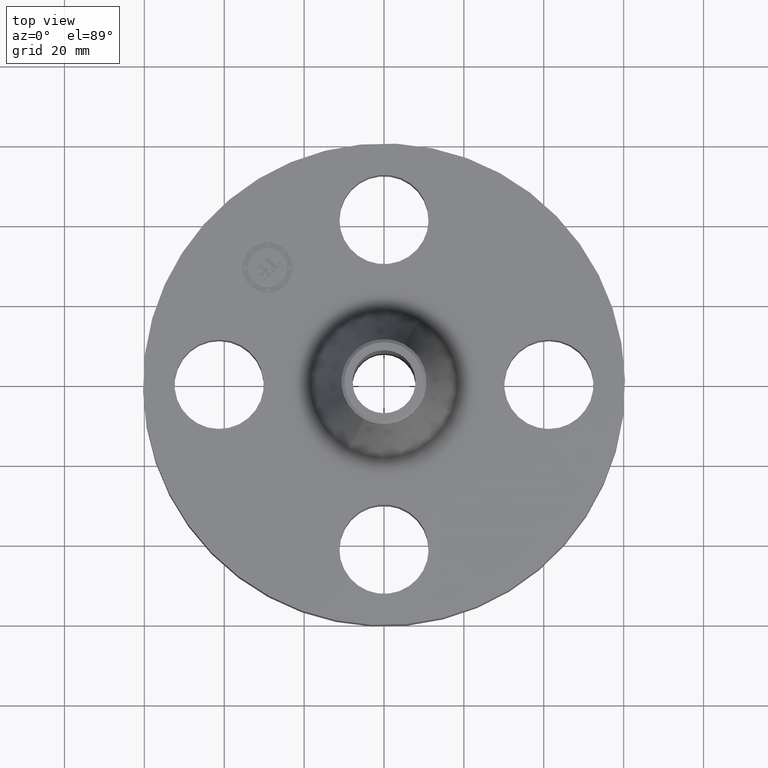
[diagram: clean part render]
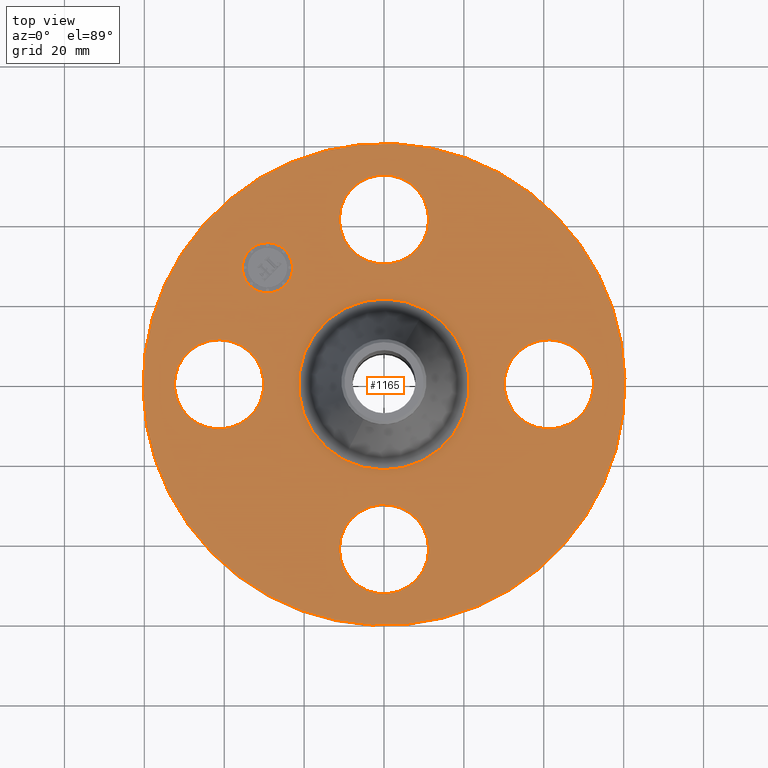
[diagram: same view with one face highlighted and labeled with its STEP entity id]
A machine part, top view. The second image highlights one B-rep face of the part: STEP entity #1165.
In plain terms, the highlighted planar face has unit normal (0, 0, -1).
Its self-contained STEP definition (entity closure, byte-faithful):
#65=AXIS2_PLACEMENT_3D('Circle Axis2P3D',#63,#64,$) ;
#110=AXIS2_PLACEMENT_3D('Circle Axis2P3D',#108,#109,$) ;
#178=AXIS2_PLACEMENT_3D('Circle Axis2P3D',#176,#177,$) ;
#202=AXIS2_PLACEMENT_3D('Circle Axis2P3D',#200,#201,$) ;
#219=AXIS2_PLACEMENT_3D('Circle Axis2P3D',#217,#218,$) ;
#254=AXIS2_PLACEMENT_3D('Circle Axis2P3D',#252,#253,$) ;
#743=AXIS2_PLACEMENT_3D('Circle Axis2P3D',#741,#742,$) ;
#760=AXIS2_PLACEMENT_3D('Circle Axis2P3D',#758,#759,$) ;
#795=AXIS2_PLACEMENT_3D('Circle Axis2P3D',#793,#794,$) ;
#812=AXIS2_PLACEMENT_3D('Circle Axis2P3D',#810,#811,$) ;
#847=AXIS2_PLACEMENT_3D('Circle Axis2P3D',#845,#846,$) ;
#864=AXIS2_PLACEMENT_3D('Circle Axis2P3D',#862,#863,$) ;
#1121=AXIS2_PLACEMENT_3D('Plane Axis2P3D',#1118,#1119,#1120) ;
#1149=AXIS2_PLACEMENT_3D('Circle Axis2P3D',#1147,#1148,$) ;
#1158=AXIS2_PLACEMENT_3D('Circle Axis2P3D',#1156,#1157,$) ;
#46=CARTESIAN_POINT('Vertex',(-0.386136327233,1.83594723699,0.880000000004)) ;
#60=CARTESIAN_POINT('Vertex',(0.386136327233,1.41405276302,0.880000000004)) ;
#63=CARTESIAN_POINT('Axis2P3D Location',(0.,1.62500000001,0.880000000004)) ;
#108=CARTESIAN_POINT('Axis2P3D Location',(0.,1.62500000001,0.880000000004)) ;
#173=CARTESIAN_POINT('Vertex',(-1.13863565419,-2.0842585845,0.880000000004)) ;
#176=CARTESIAN_POINT('Axis2P3D Location',(0.,0.,0.880000000004)) ;
#180=CARTESIAN_POINT('Vertex',(1.13863565419,2.0842585845,0.880000000004)) ;
#200=CARTESIAN_POINT('Axis2P3D Location',(0.,0.,0.880000000004)) ;
#217=CARTESIAN_POINT('Axis2P3D Location',(0.,0.,0.880000000004)) ;
#221=CARTESIAN_POINT('Vertex',(0.403797129104,0.739145686888,0.880000000004)) ;
#223=CARTESIAN_POINT('Vertex',(-0.403797129104,-0.739145686888,0.880000000004)) ;
#252=CARTESIAN_POINT('Axis2P3D Location',(0.,0.,0.880000000004)) ;
#731=CARTESIAN_POINT('Vertex',(1.83594723699,0.386136327233,0.880000000004)) ;
#738=CARTESIAN_POINT('Vertex',(1.41405276302,-0.386136327233,0.880000000004)) ;
#741=CARTESIAN_POINT('Axis2P3D Location',(1.62500000001,-1.8023868212E-016,0.880000000004)) ;
#758=CARTESIAN_POINT('Axis2P3D Location',(1.62500000001,-1.8023868212E-016,0.880000000004)) ;
#783=CARTESIAN_POINT('Vertex',(0.386136327233,-1.83594723699,0.880000000004)) ;
#790=CARTESIAN_POINT('Vertex',(-0.386136327233,-1.41405276302,0.880000000004)) ;
#793=CARTESIAN_POINT('Axis2P3D Location',(1.99005104862E-016,-1.62500000001,0.880000000004)) ;
#810=CARTESIAN_POINT('Axis2P3D Location',(1.99005104862E-016,-1.62500000001,0.880000000004)) ;
#835=CARTESIAN_POINT('Vertex',(-1.83594723699,-0.386136327233,0.880000000004)) ;
#842=CARTESIAN_POINT('Vertex',(-1.41405276302,0.386136327233,0.880000000004)) ;
#845=CARTESIAN_POINT('Axis2P3D Location',(-1.62500000001,-2.98507657293E-016,0.880000000004)) ;
#862=CARTESIAN_POINT('Axis2P3D Location',(-1.62500000001,-2.98507657293E-016,0.880000000004)) ;
#1118=CARTESIAN_POINT('Axis2P3D Location',(0.,2.37500000001,0.880000000004)) ;
#1147=CARTESIAN_POINT('Axis2P3D Location',(-1.14904851943,1.14904851943,0.880000000004)) ;
#1151=CARTESIAN_POINT('Vertex',(-1.32405744778,0.974039591088,0.880000000004)) ;
#1153=CARTESIAN_POINT('Vertex',(-0.974039591088,1.32405744778,0.880000000004)) ;
#1156=CARTESIAN_POINT('Axis2P3D Location',(-1.14904851943,1.14904851943,0.880000000004)) ;
#64=DIRECTION('Axis2P3D Direction',(0.,-0.,-0.0393700787402)) ;
#109=DIRECTION('Axis2P3D Direction',(0.,-0.,-0.0393700787402)) ;
#177=DIRECTION('Axis2P3D Direction',(0.,0.,-0.0393700787402)) ;
#201=DIRECTION('Axis2P3D Direction',(0.,0.,-0.0393700787402)) ;
#218=DIRECTION('Axis2P3D Direction',(0.,0.,-0.0393700787402)) ;
#253=DIRECTION('Axis2P3D Direction',(0.,0.,-0.0393700787402)) ;
#742=DIRECTION('Axis2P3D Direction',(0.,-0.,-0.0393700787402)) ;
#759=DIRECTION('Axis2P3D Direction',(0.,-0.,-0.0393700787402)) ;
#794=DIRECTION('Axis2P3D Direction',(-0.,0.,-0.0393700787402)) ;
#811=DIRECTION('Axis2P3D Direction',(-0.,0.,-0.0393700787402)) ;
#846=DIRECTION('Axis2P3D Direction',(0.,0.,-0.0393700787402)) ;
#863=DIRECTION('Axis2P3D Direction',(0.,0.,-0.0393700787402)) ;
#1119=DIRECTION('Axis2P3D Direction',(0.,0.,-0.0393700787402)) ;
#1120=DIRECTION('Axis2P3D XDirection',(0.0393700787402,0.,0.)) ;
#1148=DIRECTION('Axis2P3D Direction',(0.,0.,-0.0393700787402)) ;
#1157=DIRECTION('Axis2P3D Direction',(0.,0.,-0.0393700787402)) ;
#1124=ORIENTED_EDGE('',*,*,#204,.F.) ;
#1125=ORIENTED_EDGE('',*,*,#182,.F.) ;
#1128=ORIENTED_EDGE('',*,*,#67,.T.) ;
#1129=ORIENTED_EDGE('',*,*,#112,.T.) ;
#1132=ORIENTED_EDGE('',*,*,#256,.T.) ;
#1133=ORIENTED_EDGE('',*,*,#225,.T.) ;
#1136=ORIENTED_EDGE('',*,*,#762,.T.) ;
#1137=ORIENTED_EDGE('',*,*,#745,.T.) ;
#1140=ORIENTED_EDGE('',*,*,#814,.T.) ;
#1141=ORIENTED_EDGE('',*,*,#797,.T.) ;
#1144=ORIENTED_EDGE('',*,*,#866,.T.) ;
#1145=ORIENTED_EDGE('',*,*,#849,.T.) ;
#1162=ORIENTED_EDGE('',*,*,#1155,.T.) ;
#1163=ORIENTED_EDGE('',*,*,#1160,.T.) ;
#1130=FACE_BOUND('',#1127,.T.) ;
#1134=FACE_BOUND('',#1131,.T.) ;
#1138=FACE_BOUND('',#1135,.T.) ;
#1142=FACE_BOUND('',#1139,.T.) ;
#1146=FACE_BOUND('',#1143,.T.) ;
#1164=FACE_BOUND('',#1161,.T.) ;
#1165=ADVANCED_FACE('PartBody',(#1126,#1130,#1134,#1138,#1142,#1146,#1164),#1122,.F.) ;
#66=CIRCLE('generated circle',#65,0.440000000002) ;
#111=CIRCLE('generated circle',#110,0.440000000002) ;
#179=CIRCLE('generated circle',#178,2.37500000001) ;
#203=CIRCLE('generated circle',#202,2.37500000001) ;
#220=CIRCLE('generated circle',#219,0.842252021617) ;
#255=CIRCLE('generated circle',#254,0.842252021617) ;
#744=CIRCLE('generated circle',#743,0.440000000002) ;
#761=CIRCLE('generated circle',#760,0.440000000002) ;
#796=CIRCLE('generated circle',#795,0.440000000002) ;
#813=CIRCLE('generated circle',#812,0.440000000002) ;
#848=CIRCLE('generated circle',#847,0.440000000002) ;
#865=CIRCLE('generated circle',#864,0.440000000002) ;
#1150=CIRCLE('generated circle',#1149,0.247500000001) ;
#1159=CIRCLE('generated circle',#1158,0.247500000001) ;
#67=EDGE_CURVE('',#47,#61,#66,.T.) ;
#112=EDGE_CURVE('',#61,#47,#111,.T.) ;
#182=EDGE_CURVE('',#174,#181,#179,.T.) ;
#204=EDGE_CURVE('',#181,#174,#203,.T.) ;
#225=EDGE_CURVE('',#222,#224,#220,.T.) ;
#256=EDGE_CURVE('',#224,#222,#255,.T.) ;
#745=EDGE_CURVE('',#732,#739,#744,.T.) ;
#762=EDGE_CURVE('',#739,#732,#761,.T.) ;
#797=EDGE_CURVE('',#784,#791,#796,.T.) ;
#814=EDGE_CURVE('',#791,#784,#813,.T.) ;
#849=EDGE_CURVE('',#836,#843,#848,.T.) ;
#866=EDGE_CURVE('',#843,#836,#865,.T.) ;
#1155=EDGE_CURVE('',#1152,#1154,#1150,.T.) ;
#1160=EDGE_CURVE('',#1154,#1152,#1159,.T.) ;
#1123=EDGE_LOOP('',(#1124,#1125)) ;
#1127=EDGE_LOOP('',(#1128,#1129)) ;
#1131=EDGE_LOOP('',(#1132,#1133)) ;
#1135=EDGE_LOOP('',(#1136,#1137)) ;
#1139=EDGE_LOOP('',(#1140,#1141)) ;
#1143=EDGE_LOOP('',(#1144,#1145)) ;
#1161=EDGE_LOOP('',(#1162,#1163)) ;
#1126=FACE_OUTER_BOUND('',#1123,.T.) ;
#1122=PLANE('',#1121) ;
#47=VERTEX_POINT('',#46) ;
#61=VERTEX_POINT('',#60) ;
#174=VERTEX_POINT('',#173) ;
#181=VERTEX_POINT('',#180) ;
#222=VERTEX_POINT('',#221) ;
#224=VERTEX_POINT('',#223) ;
#732=VERTEX_POINT('',#731) ;
#739=VERTEX_POINT('',#738) ;
#784=VERTEX_POINT('',#783) ;
#791=VERTEX_POINT('',#790) ;
#836=VERTEX_POINT('',#835) ;
#843=VERTEX_POINT('',#842) ;
#1152=VERTEX_POINT('',#1151) ;
#1154=VERTEX_POINT('',#1153) ;